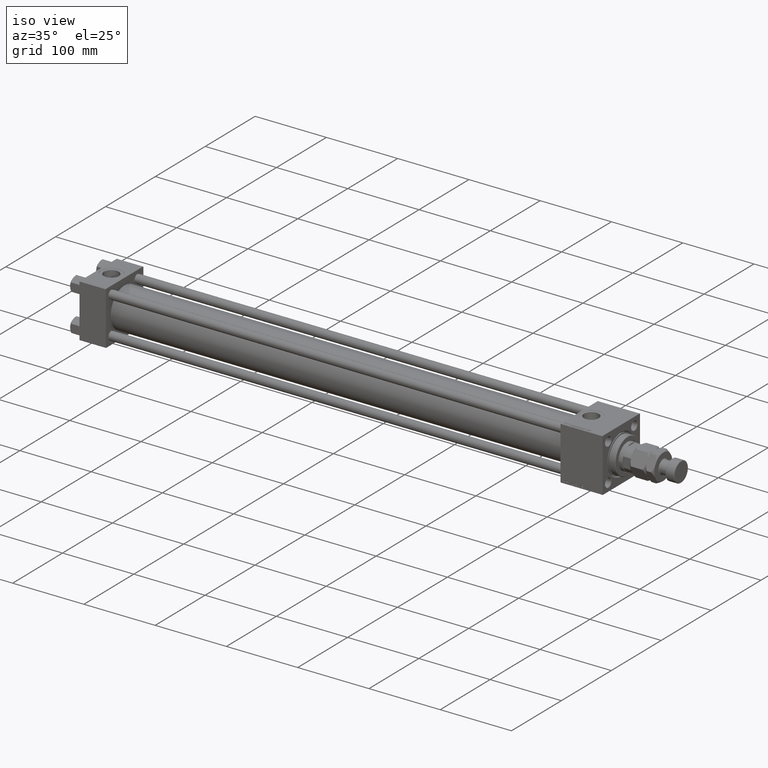
[diagram: clean part render]
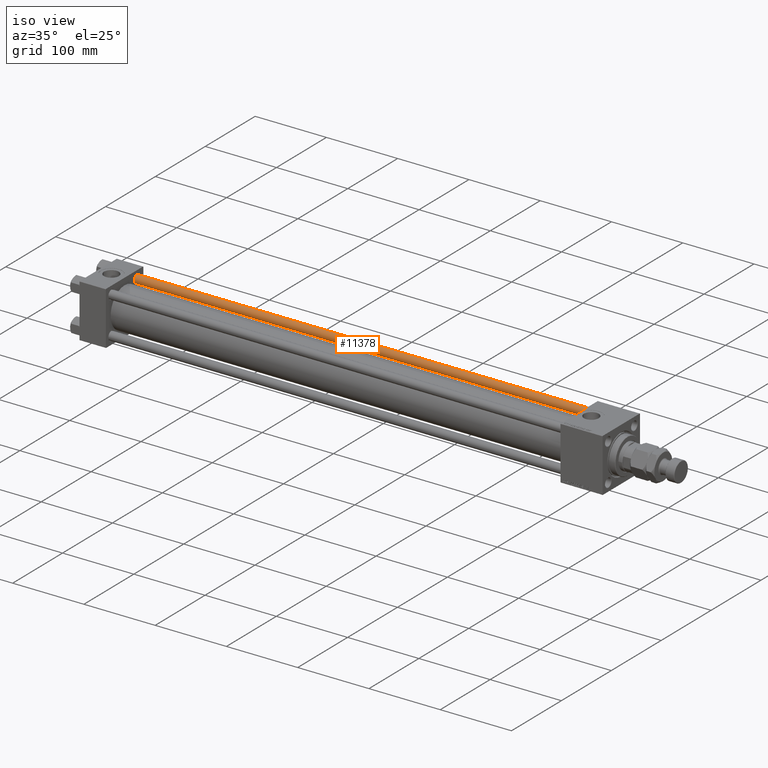
[diagram: same view with one face highlighted and labeled with its STEP entity id]
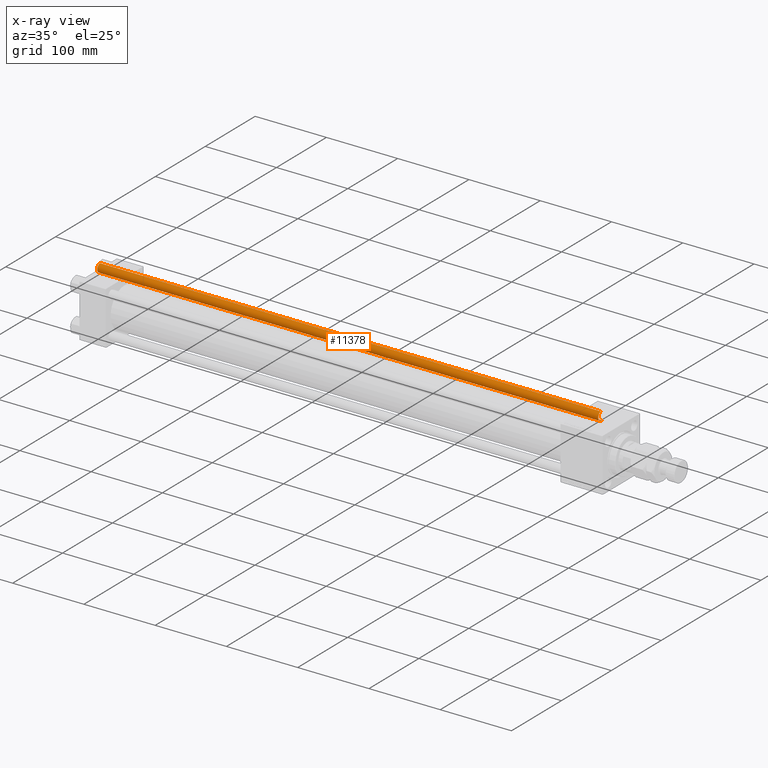
[diagram: x-ray of the same camera — body ghosted, the highlighted face saturated]
A machine part, iso view. The second image highlights one B-rep face of the part: STEP entity #11378.
The next image is the same camera in x-ray: the body ghosted, the highlighted face saturated — about 0% of this face is hidden behind the body in this view.
In plain terms, the highlighted cylindrical surface (edge-blend (fillet) strip) has radius 6 mm, axis along (-1, 0, 0).
Its self-contained STEP definition (entity closure, byte-faithful):
#1950 = DIRECTION ( 'NONE',  ( 0.000000000000000000, 0.000000000000000000, -1.000000000000000000 ) ) ;
#4516 = DIRECTION ( 'NONE',  ( -0.000000000000000000, -0.000000000000000000, -1.000000000000000000 ) ) ;
#5611 = CARTESIAN_POINT ( 'NONE',  ( -6.000000000000000888, 0.000000000000000000, 0.4999999999998339106 ) ) ;
#5962 = ORIENTED_EDGE ( 'NONE', *, *, #9321, .T. ) ;
#8463 = LINE ( 'NONE', #31562, #51599 ) ;
#9190 = VERTEX_POINT ( 'NONE', #5611 ) ;
#9321 = EDGE_CURVE ( 'NONE', #34285, #9190, #8463, .T. ) ;
#10403 = CARTESIAN_POINT ( 'NONE',  ( 6.000000000000000888, 7.347880794884120722E-16, 0.4999999999998339106 ) ) ;
#10814 = CIRCLE ( 'NONE', #17515, 6.000000000000000888 ) ;
#11378 = ADVANCED_FACE ( 'NONE', ( #35814 ), #15878, .T. ) ;
#13449 = ORIENTED_EDGE ( 'NONE', *, *, #50831, .T. ) ;
#15878 = CYLINDRICAL_SURFACE ( 'NONE', #18157, 6.000000000000000888 ) ;
#17211 = LINE ( 'NONE', #45272, #45650 ) ;
#17515 = AXIS2_PLACEMENT_3D ( 'NONE', #22421, #1950, #34742 ) ;
#17550 = EDGE_CURVE ( 'NONE', #20273, #34285, #10814, .T. ) ;
#18033 = VERTEX_POINT ( 'NONE', #10403 ) ;
#18157 = AXIS2_PLACEMENT_3D ( 'NONE', #45436, #20328, #36329 ) ;
#18544 = CARTESIAN_POINT ( 'NONE',  ( 6.000000000000000888, 7.347880794884120722E-16, 703.5000000000000000 ) ) ;
#20273 = VERTEX_POINT ( 'NONE', #18544 ) ;
#20328 = DIRECTION ( 'NONE',  ( -0.000000000000000000, -0.000000000000000000, -1.000000000000000000 ) ) ;
#21709 = CIRCLE ( 'NONE', #39181, 6.000000000000000888 ) ;
#22421 = CARTESIAN_POINT ( 'NONE',  ( 0.000000000000000000, 0.000000000000000000, 703.5000000000000000 ) ) ;
#29648 = ORIENTED_EDGE ( 'NONE', *, *, #36899, .F. ) ;
#31562 = CARTESIAN_POINT ( 'NONE',  ( -6.000000000000000888, 0.000000000000000000, 704.0000000000000000 ) ) ;
#32577 = ORIENTED_EDGE ( 'NONE', *, *, #17550, .T. ) ;
#32954 = EDGE_LOOP ( 'NONE', ( #29648, #32577, #5962, #13449 ) ) ;
#34285 = VERTEX_POINT ( 'NONE', #37185 ) ;
#34742 = DIRECTION ( 'NONE',  ( 1.000000000000000000, 0.000000000000000000, 0.000000000000000000 ) ) ;
#35814 = FACE_OUTER_BOUND ( 'NONE', #32954, .T. ) ;
#36329 = DIRECTION ( 'NONE',  ( -1.000000000000000000, 0.000000000000000000, 0.000000000000000000 ) ) ;
#36899 = EDGE_CURVE ( 'NONE', #20273, #18033, #17211, .T. ) ;
#37185 = CARTESIAN_POINT ( 'NONE',  ( -6.000000000000000888, 0.000000000000000000, 703.5000000000000000 ) ) ;
#39181 = AXIS2_PLACEMENT_3D ( 'NONE', #49730, #50509, #46553 ) ;
#45272 = CARTESIAN_POINT ( 'NONE',  ( 6.000000000000000888, 7.347880794884120722E-16, 704.0000000000000000 ) ) ;
#45436 = CARTESIAN_POINT ( 'NONE',  ( 0.000000000000000000, 0.000000000000000000, 704.0000000000000000 ) ) ;
#45650 = VECTOR ( 'NONE', #49231, 1000.000000000000000 ) ;
#46553 = DIRECTION ( 'NONE',  ( 1.000000000000000000, 0.000000000000000000, 0.000000000000000000 ) ) ;
#49231 = DIRECTION ( 'NONE',  ( -0.000000000000000000, -0.000000000000000000, -1.000000000000000000 ) ) ;
#49730 = CARTESIAN_POINT ( 'NONE',  ( 0.000000000000000000, 0.000000000000000000, 0.4999999999998339106 ) ) ;
#50509 = DIRECTION ( 'NONE',  ( -0.000000000000000000, -0.000000000000000000, 1.000000000000000000 ) ) ;
#50831 = EDGE_CURVE ( 'NONE', #9190, #18033, #21709, .T. ) ;
#51599 = VECTOR ( 'NONE', #4516, 1000.000000000000000 ) ;